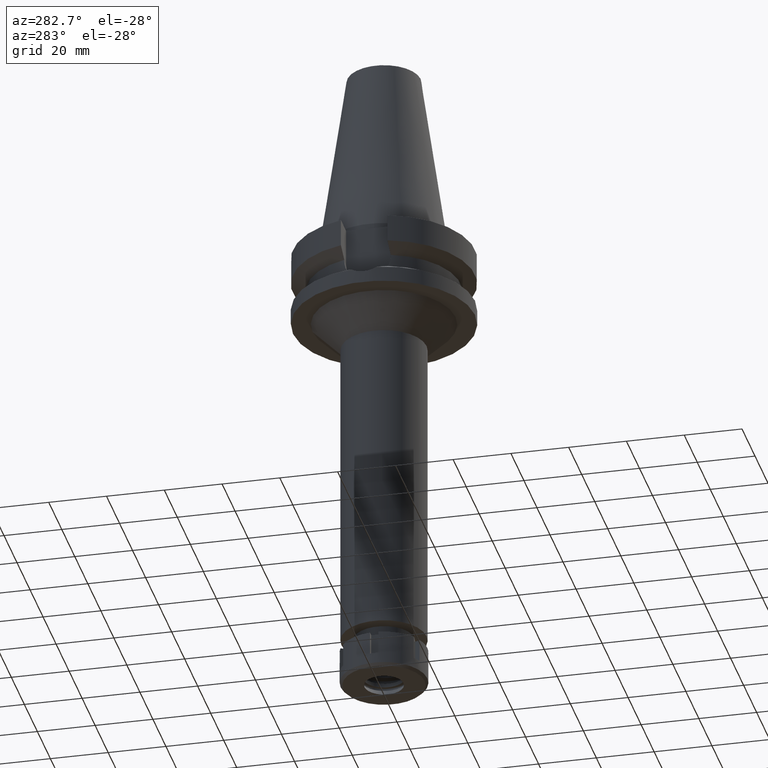
[diagram: clean part render]
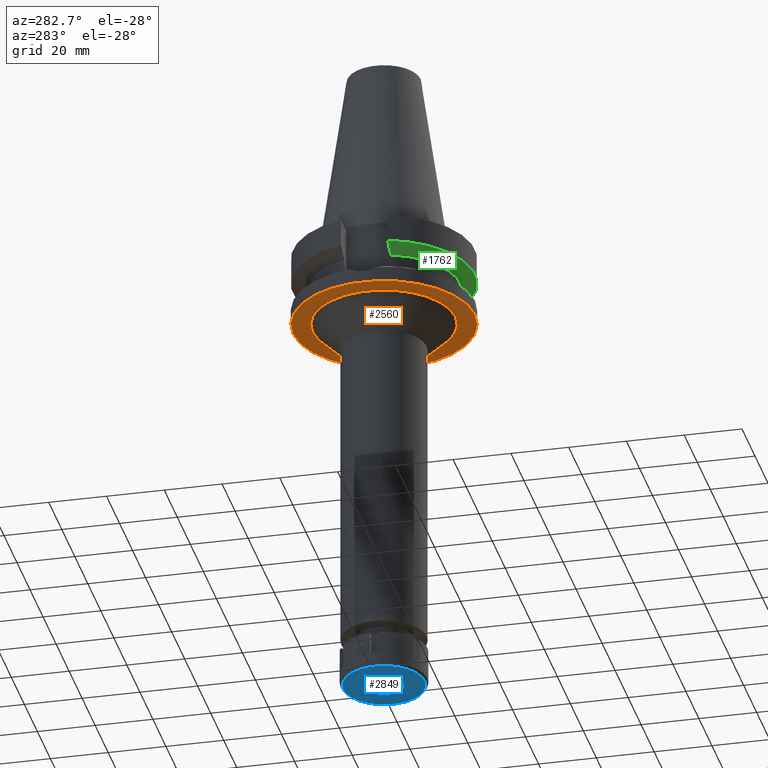
[diagram: same view with three faces highlighted in distinct colors, each labeled with its STEP entity id]
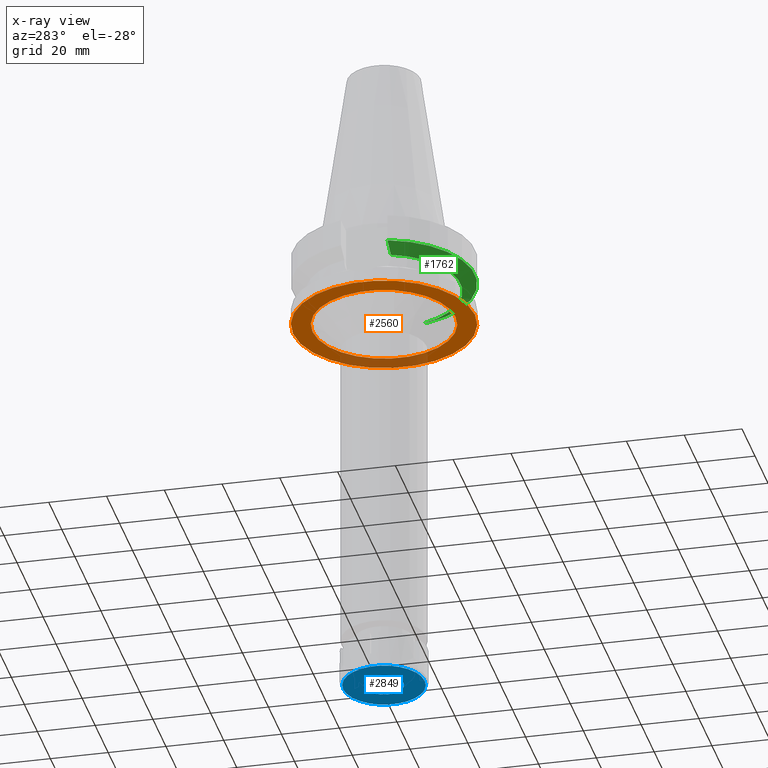
[diagram: x-ray of the same camera — body ghosted, the three highlighted faces saturated]
A machine part, auxiliary view with three faces highlighted in distinct colors.
The next image is the same camera in x-ray (body ghosted, the three faces saturated) — at least one of them is partly hidden behind the body in this view.
Their STEP definitions:

[orange] entity #2560 — the highlighted planar face has unit normal (0, 0, -1).
#48 = DIRECTION ( 'NONE',  ( 0.0000000000000000000, 1.000000000000000000, 0.0000000000000000000 ) ) ;
#131 = AXIS2_PLACEMENT_3D ( 'NONE', #258, #3090, #308 ) ;
#209 = CARTESIAN_POINT ( 'NONE',  ( 0.0000000000000000000, 2.162358853253999590E-14, -27.00000000000000000 ) ) ;
#258 = CARTESIAN_POINT ( 'NONE',  ( 0.0000000000000000000, 0.0000000000000000000, -27.00000000000000000 ) ) ;
#308 = DIRECTION ( 'NONE',  ( 0.0000000000000000000, -1.000000000000000000, 0.0000000000000000000 ) ) ;
#310 = EDGE_CURVE ( 'NONE', #1569, #406, #3178, .T. ) ;
#406 = VERTEX_POINT ( 'NONE', #3390 ) ;
#512 = EDGE_CURVE ( 'NONE', #1338, #2384, #2459, .T. ) ;
#620 = AXIS2_PLACEMENT_3D ( 'NONE', #3621, #2231, #1655 ) ;
#740 = EDGE_CURVE ( 'NONE', #406, #1569, #2125, .T. ) ;
#779 = ORIENTED_EDGE ( 'NONE', *, *, #2059, .F. ) ;
#780 = DIRECTION ( 'NONE',  ( 0.0000000000000000000, 1.000000000000000000, 0.0000000000000000000 ) ) ;
#935 = DIRECTION ( 'NONE',  ( 0.0000000000000000000, 0.0000000000000000000, -1.000000000000000000 ) ) ;
#1338 = VERTEX_POINT ( 'NONE', #3434 ) ;
#1366 = AXIS2_PLACEMENT_3D ( 'NONE', #1653, #2489, #780 ) ;
#1569 = VERTEX_POINT ( 'NONE', #3026 ) ;
#1590 = AXIS2_PLACEMENT_3D ( 'NONE', #209, #2523, #3141 ) ;
#1622 = FACE_OUTER_BOUND ( 'NONE', #3345, .T. ) ;
#1653 = CARTESIAN_POINT ( 'NONE',  ( 0.0000000000000000000, 2.162358853253999590E-14, -27.00000000000000000 ) ) ;
#1655 = DIRECTION ( 'NONE',  ( 0.0000000000000000000, -1.000000000000000000, 0.0000000000000000000 ) ) ;
#2059 = EDGE_CURVE ( 'NONE', #2384, #1338, #2714, .T. ) ;
#2125 = CIRCLE ( 'NONE', #1366, 31.50000000000000000 ) ;
#2231 = DIRECTION ( 'NONE',  ( 0.0000000000000000000, 0.0000000000000000000, -1.000000000000000000 ) ) ;
#2322 = CARTESIAN_POINT ( 'NONE',  ( 0.0000000000000000000, 0.0000000000000000000, -27.00000000000000000 ) ) ;
#2384 = VERTEX_POINT ( 'NONE', #2844 ) ;
#2459 = CIRCLE ( 'NONE', #3412, 24.75000000000000000 ) ;
#2471 = EDGE_LOOP ( 'NONE', ( #3622, #779 ) ) ;
#2489 = DIRECTION ( 'NONE',  ( 0.0000000000000000000, 0.0000000000000000000, 1.000000000000000000 ) ) ;
#2523 = DIRECTION ( 'NONE',  ( 0.0000000000000000000, 0.0000000000000000000, 1.000000000000000000 ) ) ;
#2560 = ADVANCED_FACE ( 'NONE', ( #1622, #3045 ), #3606, .T. ) ;
#2714 = CIRCLE ( 'NONE', #131, 24.75000000000000000 ) ;
#2844 = CARTESIAN_POINT ( 'NONE',  ( 0.0000000000000000000, -24.75000000000000000, -27.00000000000000000 ) ) ;
#2872 = ORIENTED_EDGE ( 'NONE', *, *, #310, .F. ) ;
#3026 = CARTESIAN_POINT ( 'NONE',  ( 0.0000000000000000000, -31.50000000000000000, -27.00000000000000000 ) ) ;
#3045 = FACE_BOUND ( 'NONE', #2471, .T. ) ;
#3090 = DIRECTION ( 'NONE',  ( 0.0000000000000000000, 0.0000000000000000000, -1.000000000000000000 ) ) ;
#3141 = DIRECTION ( 'NONE',  ( 0.0000000000000000000, -1.000000000000000000, 0.0000000000000000000 ) ) ;
#3178 = CIRCLE ( 'NONE', #1590, 31.50000000000000000 ) ;
#3202 = ORIENTED_EDGE ( 'NONE', *, *, #740, .F. ) ;
#3345 = EDGE_LOOP ( 'NONE', ( #3202, #2872 ) ) ;
#3390 = CARTESIAN_POINT ( 'NONE',  ( 0.0000000000000000000, 31.50000000000000000, -27.00000000000000000 ) ) ;
#3412 = AXIS2_PLACEMENT_3D ( 'NONE', #2322, #935, #48 ) ;
#3434 = CARTESIAN_POINT ( 'NONE',  ( 0.0000000000000000000, 24.75000000000000000, -27.00000000000000000 ) ) ;
#3606 = PLANE ( 'NONE',  #620 ) ;
#3621 = CARTESIAN_POINT ( 'NONE',  ( 0.0000000000000000000, 0.0000000000000000000, -27.00000000000000000 ) ) ;
#3622 = ORIENTED_EDGE ( 'NONE', *, *, #512, .F. ) ;

[blue] entity #2849 — the highlighted planar face has unit normal (0, 0, -1).
#109 = EDGE_CURVE ( 'NONE', #2484, #562, #292, .T. ) ;
#285 = EDGE_CURVE ( 'NONE', #2411, #2086, #1651, .T. ) ;
#292 = CIRCLE ( 'NONE', #1361, 6.750000000000000000 ) ;
#345 = EDGE_CURVE ( 'NONE', #562, #2484, #1421, .T. ) ;
#402 = DIRECTION ( 'NONE',  ( 0.0000000000000000000, 1.000000000000000000, 0.0000000000000000000 ) ) ;
#562 = VERTEX_POINT ( 'NONE', #1188 ) ;
#578 = ORIENTED_EDGE ( 'NONE', *, *, #345, .F. ) ;
#609 = CIRCLE ( 'NONE', #795, 14.09999999999999964 ) ;
#652 = DIRECTION ( 'NONE',  ( 0.0000000000000000000, 0.0000000000000000000, -1.000000000000000000 ) ) ;
#744 = DIRECTION ( 'NONE',  ( 0.0000000000000000000, -1.000000000000000000, 0.0000000000000000000 ) ) ;
#784 = ORIENTED_EDGE ( 'NONE', *, *, #3012, .F. ) ;
#795 = AXIS2_PLACEMENT_3D ( 'NONE', #1858, #2711, #3569 ) ;
#829 = CARTESIAN_POINT ( 'NONE',  ( 0.0000000000000000000, 0.0000000000000000000, -12.50000000000000000 ) ) ;
#864 = CARTESIAN_POINT ( 'NONE',  ( 0.0000000000000000000, 14.09999999999999964, -12.50000000000000000 ) ) ;
#946 = DIRECTION ( 'NONE',  ( 0.0000000000000000000, 0.0000000000000000000, -1.000000000000000000 ) ) ;
#1171 = DIRECTION ( 'NONE',  ( 0.0000000000000000000, 0.0000000000000000000, -1.000000000000000000 ) ) ;
#1188 = CARTESIAN_POINT ( 'NONE',  ( 0.0000000000000000000, -6.750000000000000000, -12.50000000000000000 ) ) ;
#1243 = CARTESIAN_POINT ( 'NONE',  ( 0.0000000000000000000, -14.09999999999999964, -12.50000000000000000 ) ) ;
#1312 = AXIS2_PLACEMENT_3D ( 'NONE', #3244, #3565, #744 ) ;
#1361 = AXIS2_PLACEMENT_3D ( 'NONE', #3454, #946, #402 ) ;
#1421 = CIRCLE ( 'NONE', #2881, 6.750000000000000000 ) ;
#1439 = CARTESIAN_POINT ( 'NONE',  ( 0.0000000000000000000, 0.0000000000000000000, -12.50000000000000000 ) ) ;
#1586 = EDGE_LOOP ( 'NONE', ( #3509, #578 ) ) ;
#1651 = CIRCLE ( 'NONE', #1312, 14.09999999999999964 ) ;
#1708 = FACE_OUTER_BOUND ( 'NONE', #2802, .T. ) ;
#1817 = ORIENTED_EDGE ( 'NONE', *, *, #285, .F. ) ;
#1858 = CARTESIAN_POINT ( 'NONE',  ( 0.0000000000000000000, 0.0000000000000000000, -12.50000000000000000 ) ) ;
#1934 = DIRECTION ( 'NONE',  ( 0.0000000000000000000, -1.000000000000000000, 0.0000000000000000000 ) ) ;
#2086 = VERTEX_POINT ( 'NONE', #864 ) ;
#2411 = VERTEX_POINT ( 'NONE', #1243 ) ;
#2484 = VERTEX_POINT ( 'NONE', #2937 ) ;
#2545 = AXIS2_PLACEMENT_3D ( 'NONE', #1439, #652, #2549 ) ;
#2549 = DIRECTION ( 'NONE',  ( 0.0000000000000000000, -1.000000000000000000, 0.0000000000000000000 ) ) ;
#2711 = DIRECTION ( 'NONE',  ( 0.0000000000000000000, 0.0000000000000000000, 1.000000000000000000 ) ) ;
#2802 = EDGE_LOOP ( 'NONE', ( #784, #1817 ) ) ;
#2819 = PLANE ( 'NONE',  #2545 ) ;
#2849 = ADVANCED_FACE ( 'NONE', ( #1708, #2900 ), #2819, .T. ) ;
#2881 = AXIS2_PLACEMENT_3D ( 'NONE', #829, #1171, #1934 ) ;
#2900 = FACE_BOUND ( 'NONE', #1586, .T. ) ;
#2937 = CARTESIAN_POINT ( 'NONE',  ( 0.0000000000000000000, 6.750000000000000000, -12.50000000000000000 ) ) ;
#3012 = EDGE_CURVE ( 'NONE', #2086, #2411, #609, .T. ) ;
#3244 = CARTESIAN_POINT ( 'NONE',  ( 0.0000000000000000000, 0.0000000000000000000, -12.50000000000000000 ) ) ;
#3454 = CARTESIAN_POINT ( 'NONE',  ( 0.0000000000000000000, 0.0000000000000000000, -12.50000000000000000 ) ) ;
#3509 = ORIENTED_EDGE ( 'NONE', *, *, #109, .F. ) ;
#3565 = DIRECTION ( 'NONE',  ( 0.0000000000000000000, 0.0000000000000000000, 1.000000000000000000 ) ) ;
#3569 = DIRECTION ( 'NONE',  ( 0.0000000000000000000, 1.000000000000000000, 0.0000000000000000000 ) ) ;

[green] entity #1762 — the highlighted conical surface has half-angle 60 deg.
#13 = CIRCLE ( 'NONE', #1668, 26.50000000000000711 ) ;
#170 = CARTESIAN_POINT ( 'NONE',  ( 25.24772266958000344, -8.050000000000000711, -14.45225699861000024 ) ) ;
#298 = CIRCLE ( 'NONE', #729, 31.50000000000000000 ) ;
#415 = VERTEX_POINT ( 'NONE', #1113 ) ;
#597 = DIRECTION ( 'NONE',  ( 0.0000000000000000000, 0.0000000000000000000, -1.000000000000000000 ) ) ;
#651 = B_SPLINE_CURVE_WITH_KNOTS ( 'NONE', 3,
 ( #1499, #2883, #2008, #2571 ),
 .UNSPECIFIED., .F., .F.,
 ( 4, 4 ),
 ( 0.0000000000000000000, 1.000000000000000000 ),
 .UNSPECIFIED. ) ;
#729 = AXIS2_PLACEMENT_3D ( 'NONE', #1373, #2207, #1169 ) ;
#812 = CARTESIAN_POINT ( 'NONE',  ( 0.0000000000000000000, 1.065333950388000029E-14, -14.45225699861000024 ) ) ;
#870 = CARTESIAN_POINT ( 'NONE',  ( 0.0000000000000000000, 1.065333950388000029E-14, -13.00888132564000088 ) ) ;
#933 = EDGE_CURVE ( 'NONE', #1493, #415, #298, .T. ) ;
#1017 = AXIS2_PLACEMENT_3D ( 'NONE', #870, #2520, #3647 ) ;
#1113 = CARTESIAN_POINT ( 'NONE',  ( 30.45402272279000044, -8.049999999999000622, -11.56550565266999975 ) ) ;
#1155 = ORIENTED_EDGE ( 'NONE', *, *, #933, .F. ) ;
#1162 = ORIENTED_EDGE ( 'NONE', *, *, #2118, .F. ) ;
#1169 = DIRECTION ( 'NONE',  ( 0.0000000000000000000, -1.000000000000000000, 0.0000000000000000000 ) ) ;
#1299 = CARTESIAN_POINT ( 'NONE',  ( 30.45402272279000044, -8.049999999999000622, -11.56550565266999975 ) ) ;
#1336 = CARTESIAN_POINT ( 'NONE',  ( 26.83757730459284119, -8.050003177712282465, -13.57772965054501491 ) ) ;
#1373 = CARTESIAN_POINT ( 'NONE',  ( 0.0000000000000000000, 1.065333950388000029E-14, -11.56550565266999975 ) ) ;
#1492 = VERTEX_POINT ( 'NONE', #3546 ) ;
#1493 = VERTEX_POINT ( 'NONE', #1880 ) ;
#1499 = CARTESIAN_POINT ( 'NONE',  ( -30.45402291358000113, -8.049999278195999253, -11.56551215380000031 ) ) ;
#1549 = ORIENTED_EDGE ( 'NONE', *, *, #2316, .T. ) ;
#1668 = AXIS2_PLACEMENT_3D ( 'NONE', #812, #597, #1712 ) ;
#1712 = DIRECTION ( 'NONE',  ( 0.9527442516822307583, -0.3037735849057093818, 0.0000000000000000000 ) ) ;
#1721 = CONICAL_SURFACE ( 'NONE', #1017, 29.00000000000000000, 1.047197551196400456 ) ;
#1762 = ADVANCED_FACE ( 'NONE', ( #2284 ), #1721, .T. ) ;
#1873 = CARTESIAN_POINT ( 'NONE',  ( 28.57294951894145285, -8.050008280307146435, -12.61547990224312521 ) ) ;
#1880 = CARTESIAN_POINT ( 'NONE',  ( -30.45402291358000113, -8.049999278195999253, -11.56551215380000031 ) ) ;
#1998 = B_SPLINE_CURVE_WITH_KNOTS ( 'NONE', 3,
 ( #170, #1336, #1873, #1299 ),
 .UNSPECIFIED., .F., .F.,
 ( 4, 4 ),
 ( 0.0000000000000000000, 1.000000000000000000 ),
 .UNSPECIFIED. ) ;
#2008 = CARTESIAN_POINT ( 'NONE',  ( -26.83754616083559341, -8.049990821977567990, -13.57774888054535722 ) ) ;
#2118 = EDGE_CURVE ( 'NONE', #1492, #2415, #13, .T. ) ;
#2207 = DIRECTION ( 'NONE',  ( 0.0000000000000000000, 0.0000000000000000000, 1.000000000000000000 ) ) ;
#2233 = EDGE_LOOP ( 'NONE', ( #1549, #1162, #2939, #1155 ) ) ;
#2284 = FACE_OUTER_BOUND ( 'NONE', #2233, .T. ) ;
#2316 = EDGE_CURVE ( 'NONE', #1493, #2415, #651, .T. ) ;
#2415 = VERTEX_POINT ( 'NONE', #3475 ) ;
#2447 = EDGE_CURVE ( 'NONE', #1492, #415, #1998, .T. ) ;
#2520 = DIRECTION ( 'NONE',  ( 0.0000000000000000000, 0.0000000000000000000, 1.000000000000000000 ) ) ;
#2571 = CARTESIAN_POINT ( 'NONE',  ( -25.24772413111999825, -8.049995416064998466, -14.45229202584999939 ) ) ;
#2883 = CARTESIAN_POINT ( 'NONE',  ( -28.57292329137948528, -8.049998557331793592, -12.61549605472040270 ) ) ;
#2939 = ORIENTED_EDGE ( 'NONE', *, *, #2447, .T. ) ;
#3475 = CARTESIAN_POINT ( 'NONE',  ( -25.24772413111999825, -8.049995416064998466, -14.45229202584999939 ) ) ;
#3546 = CARTESIAN_POINT ( 'NONE',  ( 25.24772266958000344, -8.050000000000000711, -14.45225699861000024 ) ) ;
#3647 = DIRECTION ( 'NONE',  ( 0.0000000000000000000, 1.000000000000000000, 0.0000000000000000000 ) ) ;